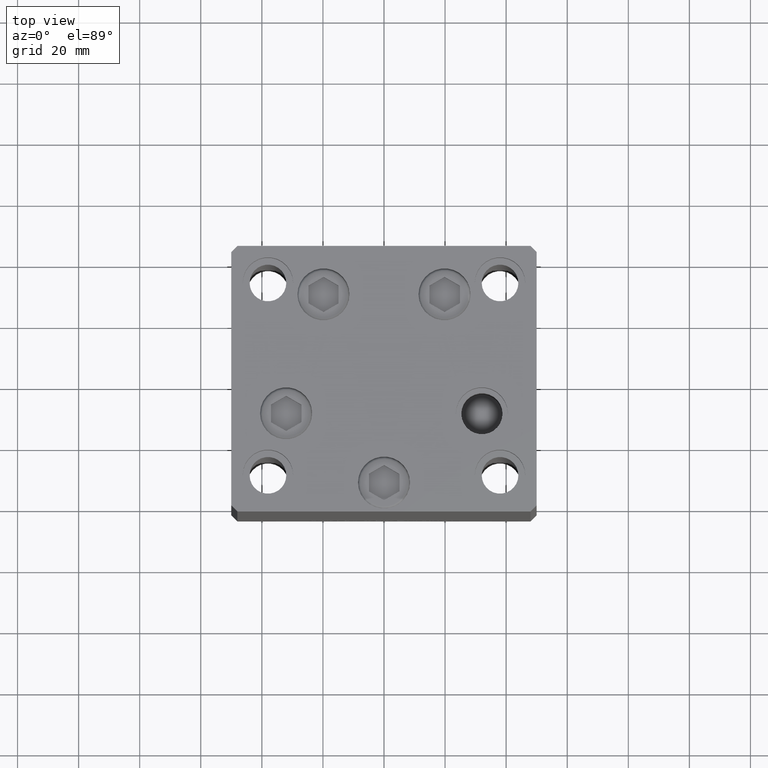
[diagram: clean part render]
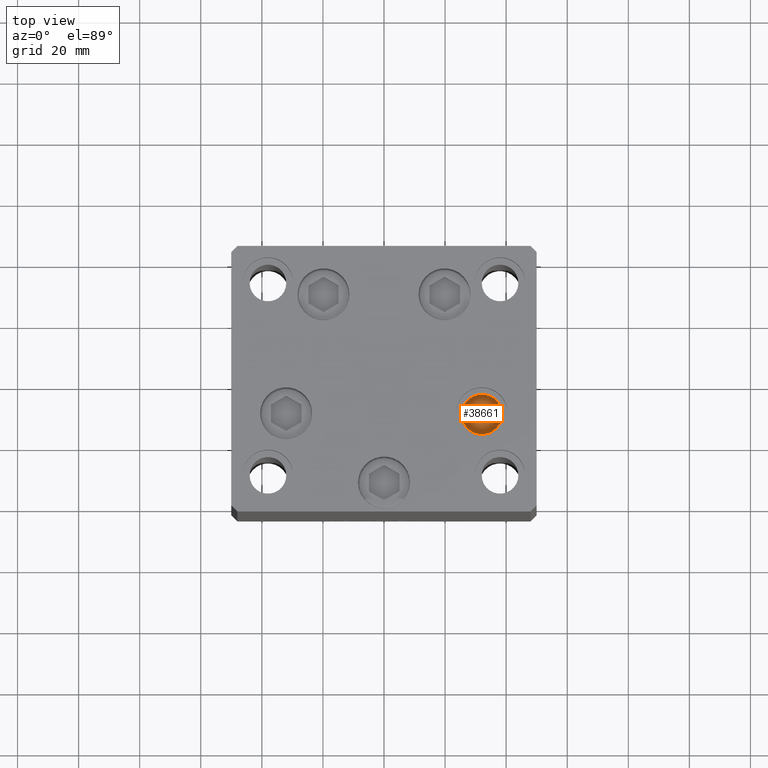
[diagram: same view with one face highlighted and labeled with its STEP entity id]
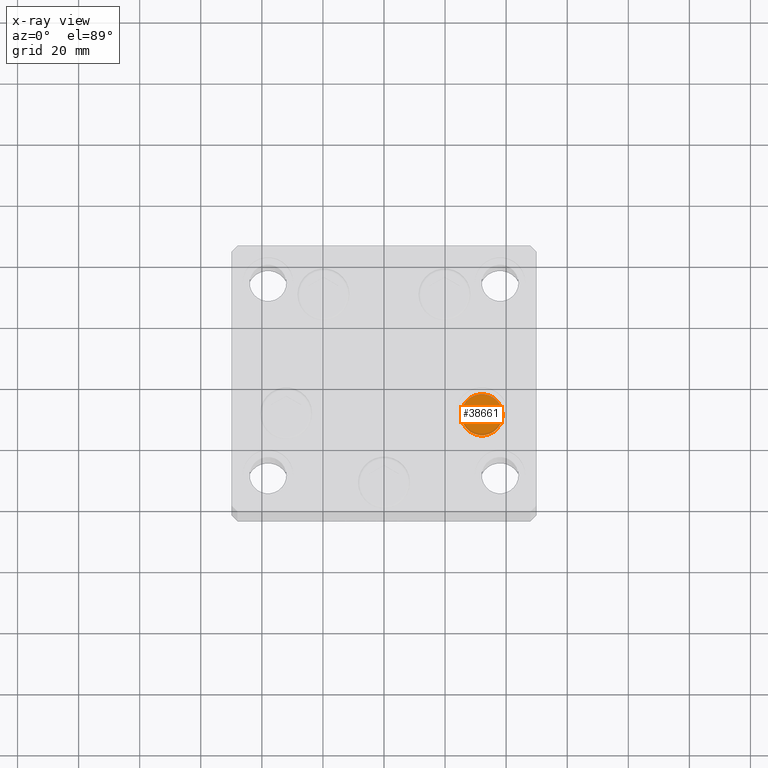
[diagram: x-ray of the same camera — body ghosted, the highlighted face saturated]
A machine part, top view. The second image highlights one B-rep face of the part: STEP entity #38661.
The next image is the same camera in x-ray: the body ghosted, the highlighted face saturated — about 0% of this face is hidden behind the body in this view.
In plain terms, the highlighted planar face has unit normal (0, 0, 1).
Its self-contained STEP definition (entity closure, byte-faithful):
#320 = CIRCLE ( 'NONE', #16169, 6.749999999999999112 ) ;
#2279 = DIRECTION ( 'NONE',  ( 1.000000000000000000, 0.000000000000000000, 0.000000000000000000 ) ) ;
#6573 = CARTESIAN_POINT ( 'NONE',  ( 32.05550741379015278, -11.33333333333333215, 135.3000000000000114 ) ) ;
#7235 = DIRECTION ( 'NONE',  ( 0.000000000000000000, 0.000000000000000000, 1.000000000000000000 ) ) ;
#9016 = EDGE_CURVE ( 'NONE', #24580, #24126, #320, .T. ) ;
#11851 = EDGE_LOOP ( 'NONE', ( #38911, #20808 ) ) ;
#12053 = AXIS2_PLACEMENT_3D ( 'NONE', #41305, #7235, #22390 ) ;
#14642 = EDGE_CURVE ( 'NONE', #24126, #24580, #40165, .T. ) ;
#14702 = FACE_OUTER_BOUND ( 'NONE', #11851, .T. ) ;
#16169 = AXIS2_PLACEMENT_3D ( 'NONE', #6573, #26450, #36900 ) ;
#17910 = DIRECTION ( 'NONE',  ( 0.000000000000000000, 0.000000000000000000, 1.000000000000000000 ) ) ;
#20808 = ORIENTED_EDGE ( 'NONE', *, *, #9016, .T. ) ;
#21405 = CARTESIAN_POINT ( 'NONE',  ( 38.80550741379015278, -11.33333333333333215, 135.3000000000000114 ) ) ;
#22390 = DIRECTION ( 'NONE',  ( 1.000000000000000000, 0.000000000000000000, -0.000000000000000000 ) ) ;
#23508 = AXIS2_PLACEMENT_3D ( 'NONE', #44040, #17910, #2279 ) ;
#24126 = VERTEX_POINT ( 'NONE', #21405 ) ;
#24580 = VERTEX_POINT ( 'NONE', #36404 ) ;
#26450 = DIRECTION ( 'NONE',  ( 0.000000000000000000, 0.000000000000000000, 1.000000000000000000 ) ) ;
#29862 = PLANE ( 'NONE',  #12053 ) ;
#36404 = CARTESIAN_POINT ( 'NONE',  ( 25.30550741379015278, -11.33333333333333215, 135.3000000000000114 ) ) ;
#36900 = DIRECTION ( 'NONE',  ( 1.000000000000000000, 0.000000000000000000, 0.000000000000000000 ) ) ;
#38661 = ADVANCED_FACE ( 'NONE', ( #14702 ), #29862, .T. ) ;
#38911 = ORIENTED_EDGE ( 'NONE', *, *, #14642, .T. ) ;
#40165 = CIRCLE ( 'NONE', #23508, 6.749999999999999112 ) ;
#41305 = CARTESIAN_POINT ( 'NONE',  ( 32.05550741379015278, -11.33333333333333215, 135.3000000000000114 ) ) ;
#44040 = CARTESIAN_POINT ( 'NONE',  ( 32.05550741379015278, -11.33333333333333215, 135.3000000000000114 ) ) ;